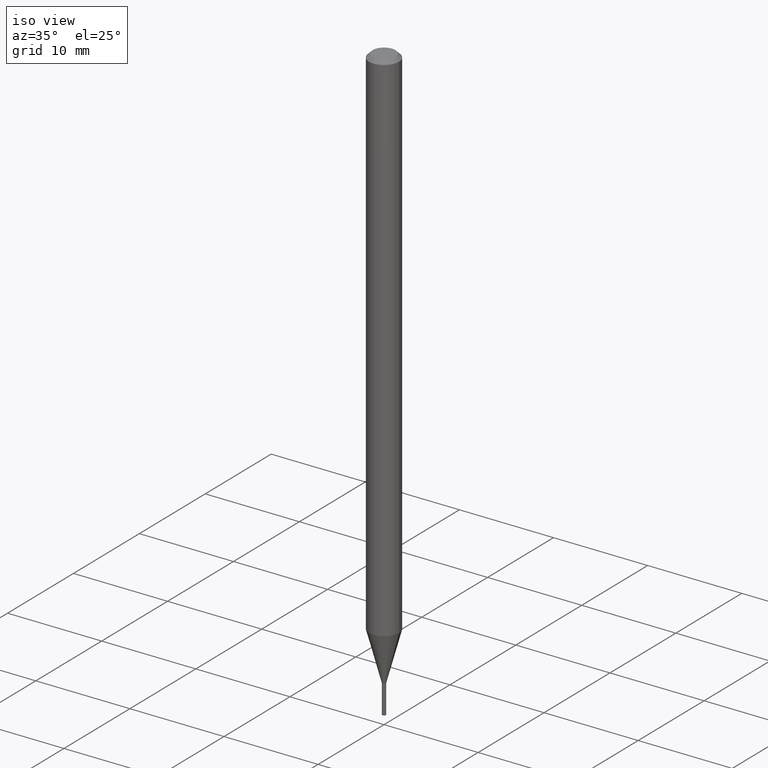
[diagram: clean part render]
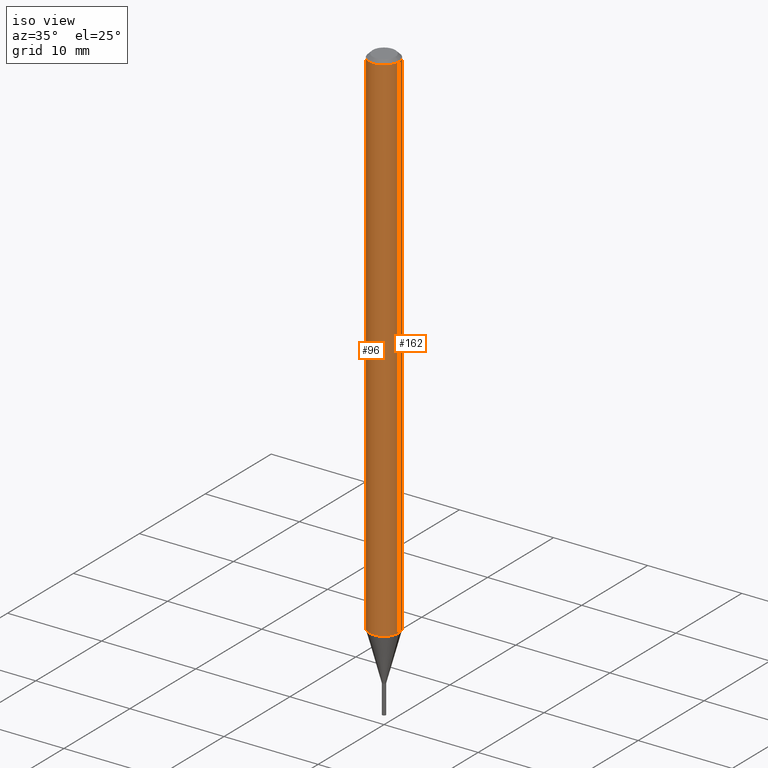
[diagram: same view with one multi-face feature highlighted, each face labeled with its STEP entity id]
A machine part, iso view. The highlighted faces form ONE feature: a constant-radius fillet chain: 2 tangent blend faces with common blend radius 1.5875 mm. The faces share edges in the B-rep.
Their STEP definitions:
[1] entity #96 (Cylinder):
#2 = AXIS2_PLACEMENT_3D ( 'NONE', #89, #336, #120 ) ;
#6 = DIRECTION ( 'NONE',  ( 1.000000000000000000, -6.982962677686262766E-15, 0.000000000000000000 ) ) ;
#9 = VERTEX_POINT ( 'NONE', #189 ) ;
#16 = EDGE_LOOP ( 'NONE', ( #339, #265, #446, #136 ) ) ;
#48 = CIRCLE ( 'NONE', #61, 0.06250000000000000000 ) ;
#59 = CARTESIAN_POINT ( 'NONE',  ( -0.06249999999999999306, -7.148965160333359965E-15, -2.174737205583713084 ) ) ;
#61 = AXIS2_PLACEMENT_3D ( 'NONE', #246, #436, #6 ) ;
#64 = VERTEX_POINT ( 'NONE', #215 ) ;
#77 = AXIS2_PLACEMENT_3D ( 'NONE', #342, #243, #461 ) ;
#89 = CARTESIAN_POINT ( 'NONE',  ( 0.000000000000000000, 0.000000000000000000, 0.000000000000000000 ) ) ;
#96 = ADVANCED_FACE ( 'NONE', ( #363 ), #332, .T. ) ;
#120 = DIRECTION ( 'NONE',  ( 1.000000000000000000, -6.982962677686266711E-15, 4.876176775795935793E-29 ) ) ;
#122 = CIRCLE ( 'NONE', #77, 0.06250000000000000000 ) ;
#136 = ORIENTED_EDGE ( 'NONE', *, *, #309, .F. ) ;
#145 = EDGE_CURVE ( 'NONE', #242, #9, #169, .T. ) ;
#169 = LINE ( 'NONE', #172, #394 ) ;
#172 = CARTESIAN_POINT ( 'NONE',  ( -0.06250000000000000000, 4.440892098500626162E-16, -3.074334431409316114E-30 ) ) ;
#189 = CARTESIAN_POINT ( 'NONE',  ( -0.06250000000000000000, -3.378624085282973200E-15, -0.01499999999999999944 ) ) ;
#207 = LINE ( 'NONE', #236, #430 ) ;
#215 = CARTESIAN_POINT ( 'NONE',  ( 0.06249999999999999306, -8.029489537538814251E-15, -2.174737205583713084 ) ) ;
#236 = CARTESIAN_POINT ( 'NONE',  ( 0.06250000000000000000, -4.364351673553916694E-16, 3.047610484872459871E-30 ) ) ;
#241 = DIRECTION ( 'NONE',  ( -2.445468806185136877E-29, 3.491481338843145188E-15, 1.000000000000000000 ) ) ;
#242 = VERTEX_POINT ( 'NONE', #59 ) ;
#243 = DIRECTION ( 'NONE',  ( -2.445468806185136597E-29, 3.491481338843145583E-15, 1.000000000000000000 ) ) ;
#246 = CARTESIAN_POINT ( 'NONE',  ( 5.318251997905203025E-29, -7.593054370183424159E-15, -2.174737205583713084 ) ) ;
#265 = ORIENTED_EDGE ( 'NONE', *, *, #410, .T. ) ;
#289 = EDGE_CURVE ( 'NONE', #64, #308, #207, .T. ) ;
#305 = DIRECTION ( 'NONE',  ( -2.445468806185136877E-29, 3.491481338843145188E-15, 1.000000000000000000 ) ) ;
#308 = VERTEX_POINT ( 'NONE', #354 ) ;
#309 = EDGE_CURVE ( 'NONE', #9, #308, #122, .T. ) ;
#332 = CYLINDRICAL_SURFACE ( 'NONE', #2, 0.06250000000000000000 ) ;
#336 = DIRECTION ( 'NONE',  ( -2.445468806185136597E-29, 3.491481338843145583E-15, 1.000000000000000000 ) ) ;
#339 = ORIENTED_EDGE ( 'NONE', *, *, #145, .F. ) ;
#342 = CARTESIAN_POINT ( 'NONE',  ( 3.668203209277705088E-31, -5.237222008264718399E-17, -0.01499999999999999944 ) ) ;
#354 = CARTESIAN_POINT ( 'NONE',  ( 0.06250000000000000000, -4.888073874380388472E-16, -0.01499999999999999944 ) ) ;
#363 = FACE_OUTER_BOUND ( 'NONE', #16, .T. ) ;
#394 = VECTOR ( 'NONE', #305, 39.37007874015748143 ) ;
#410 = EDGE_CURVE ( 'NONE', #242, #64, #48, .T. ) ;
#430 = VECTOR ( 'NONE', #241, 39.37007874015748143 ) ;
#436 = DIRECTION ( 'NONE',  ( -2.445468806185136597E-29, 3.491481338843145583E-15, 1.000000000000000000 ) ) ;
#446 = ORIENTED_EDGE ( 'NONE', *, *, #289, .T. ) ;
#461 = DIRECTION ( 'NONE',  ( 1.000000000000000000, -6.982962677686266711E-15, 0.000000000000000000 ) ) ;
[2] entity #162 (Cylinder):
#8 = AXIS2_PLACEMENT_3D ( 'NONE', #72, #387, #30 ) ;
#9 = VERTEX_POINT ( 'NONE', #189 ) ;
#12 = DIRECTION ( 'NONE',  ( -2.445468806185136597E-29, 3.491481338843145583E-15, 1.000000000000000000 ) ) ;
#15 = DIRECTION ( 'NONE',  ( 1.000000000000000000, -6.982962677686266711E-15, 0.000000000000000000 ) ) ;
#30 = DIRECTION ( 'NONE',  ( 1.000000000000000000, -6.982962677686262766E-15, 0.000000000000000000 ) ) ;
#34 = AXIS2_PLACEMENT_3D ( 'NONE', #426, #316, #65 ) ;
#55 = EDGE_CURVE ( 'NONE', #64, #242, #412, .T. ) ;
#59 = CARTESIAN_POINT ( 'NONE',  ( -0.06249999999999999306, -7.148965160333359965E-15, -2.174737205583713084 ) ) ;
#64 = VERTEX_POINT ( 'NONE', #215 ) ;
#65 = DIRECTION ( 'NONE',  ( 1.000000000000000000, -6.982962677686266711E-15, 4.876176775795935793E-29 ) ) ;
#72 = CARTESIAN_POINT ( 'NONE',  ( 5.318251997905203025E-29, -7.593054370183424159E-15, -2.174737205583713084 ) ) ;
#108 = EDGE_CURVE ( 'NONE', #308, #9, #193, .T. ) ;
#130 = CYLINDRICAL_SURFACE ( 'NONE', #34, 0.06250000000000000000 ) ;
#145 = EDGE_CURVE ( 'NONE', #242, #9, #169, .T. ) ;
#162 = ADVANCED_FACE ( 'NONE', ( #299 ), #130, .T. ) ;
#169 = LINE ( 'NONE', #172, #394 ) ;
#170 = ORIENTED_EDGE ( 'NONE', *, *, #145, .T. ) ;
#172 = CARTESIAN_POINT ( 'NONE',  ( -0.06250000000000000000, 4.440892098500626162E-16, -3.074334431409316114E-30 ) ) ;
#189 = CARTESIAN_POINT ( 'NONE',  ( -0.06250000000000000000, -3.378624085282973200E-15, -0.01499999999999999944 ) ) ;
#193 = CIRCLE ( 'NONE', #438, 0.06250000000000000000 ) ;
#206 = ORIENTED_EDGE ( 'NONE', *, *, #108, .F. ) ;
#207 = LINE ( 'NONE', #236, #430 ) ;
#215 = CARTESIAN_POINT ( 'NONE',  ( 0.06249999999999999306, -8.029489537538814251E-15, -2.174737205583713084 ) ) ;
#236 = CARTESIAN_POINT ( 'NONE',  ( 0.06250000000000000000, -4.364351673553916694E-16, 3.047610484872459871E-30 ) ) ;
#241 = DIRECTION ( 'NONE',  ( -2.445468806185136877E-29, 3.491481338843145188E-15, 1.000000000000000000 ) ) ;
#242 = VERTEX_POINT ( 'NONE', #59 ) ;
#277 = EDGE_LOOP ( 'NONE', ( #372, #170, #206, #388 ) ) ;
#289 = EDGE_CURVE ( 'NONE', #64, #308, #207, .T. ) ;
#299 = FACE_OUTER_BOUND ( 'NONE', #277, .T. ) ;
#305 = DIRECTION ( 'NONE',  ( -2.445468806185136877E-29, 3.491481338843145188E-15, 1.000000000000000000 ) ) ;
#308 = VERTEX_POINT ( 'NONE', #354 ) ;
#316 = DIRECTION ( 'NONE',  ( -2.445468806185136597E-29, 3.491481338843145583E-15, 1.000000000000000000 ) ) ;
#329 = CARTESIAN_POINT ( 'NONE',  ( 3.668203209277705088E-31, -5.237222008264718399E-17, -0.01499999999999999944 ) ) ;
#354 = CARTESIAN_POINT ( 'NONE',  ( 0.06250000000000000000, -4.888073874380388472E-16, -0.01499999999999999944 ) ) ;
#372 = ORIENTED_EDGE ( 'NONE', *, *, #55, .T. ) ;
#387 = DIRECTION ( 'NONE',  ( -2.445468806185136597E-29, 3.491481338843145583E-15, 1.000000000000000000 ) ) ;
#388 = ORIENTED_EDGE ( 'NONE', *, *, #289, .F. ) ;
#394 = VECTOR ( 'NONE', #305, 39.37007874015748143 ) ;
#412 = CIRCLE ( 'NONE', #8, 0.06250000000000000000 ) ;
#426 = CARTESIAN_POINT ( 'NONE',  ( 0.000000000000000000, 0.000000000000000000, 0.000000000000000000 ) ) ;
#430 = VECTOR ( 'NONE', #241, 39.37007874015748143 ) ;
#438 = AXIS2_PLACEMENT_3D ( 'NONE', #329, #12, #15 ) ;